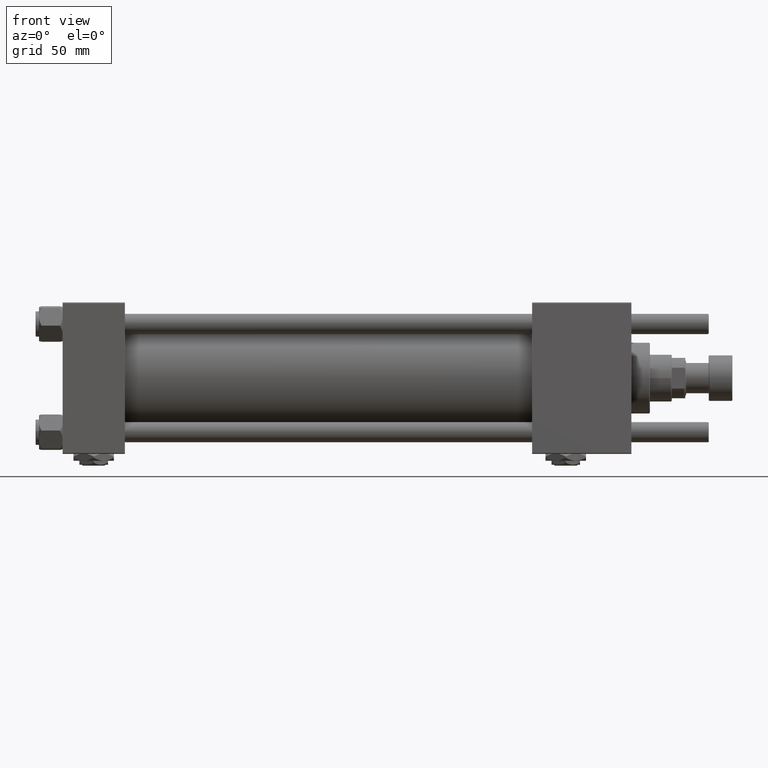
[diagram: clean part render]
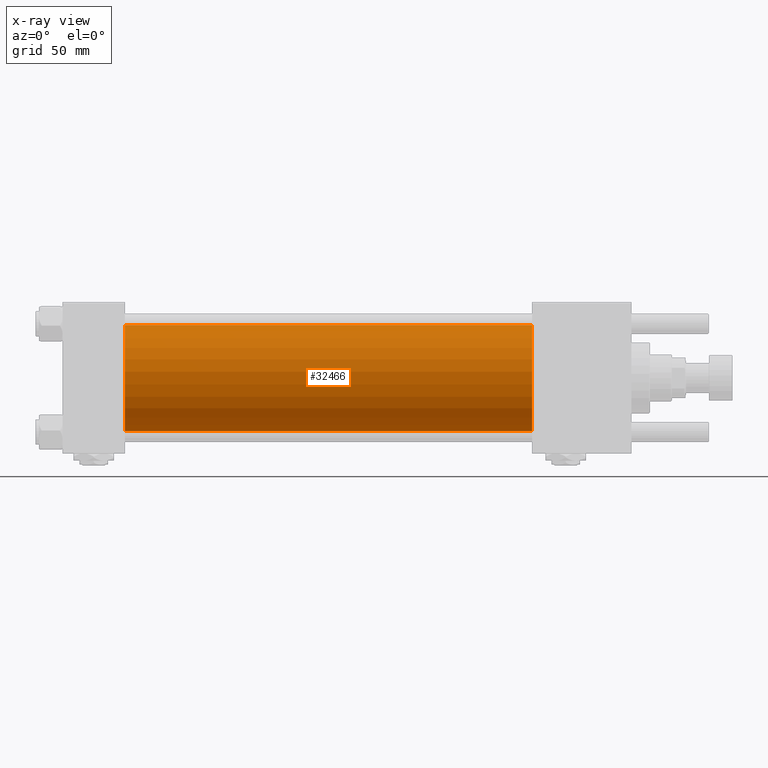
[diagram: x-ray — body ghosted, one internal face saturated and labeled with its STEP entity id]
A machine part, front view, then the same camera in x-ray: the body is ghosted and one INTERNAL B-rep face — a face not visible from any outside direction — is saturated and labeled: STEP entity #32466.
In plain terms, the highlighted cylindrical surface (partial cylindrical patch) has radius 31.5 mm, axis along (-1, -0, -0).
Its self-contained STEP definition (entity closure, byte-faithful):
#948 = VECTOR ( 'NONE', #6233, 1000.000000000000000 ) ;
#1328 = EDGE_CURVE ( 'NONE', #55247, #13382, #3062, .T. ) ;
#2180 = ORIENTED_EDGE ( 'NONE', *, *, #40118, .T. ) ;
#2565 = CARTESIAN_POINT ( 'NONE',  ( 278.9999999999999432, 1.255552203348951850E-15, -31.50000000000000000 ) ) ;
#3062 = CIRCLE ( 'NONE', #35576, 31.50000000000000000 ) ;
#6233 = DIRECTION ( 'NONE',  ( -1.000000000000000000, -0.000000000000000000, -0.000000000000000000 ) ) ;
#7754 = DIRECTION ( 'NONE',  ( 1.000000000000000000, 0.000000000000000000, 0.000000000000000000 ) ) ;
#10708 = VERTEX_POINT ( 'NONE', #2565 ) ;
#11049 = DIRECTION ( 'NONE',  ( 1.000000000000000000, 0.000000000000000000, 0.000000000000000000 ) ) ;
#11092 = DIRECTION ( 'NONE',  ( -1.000000000000000000, -0.000000000000000000, -0.000000000000000000 ) ) ;
#11679 = FACE_OUTER_BOUND ( 'NONE', #33802, .T. ) ;
#13382 = VERTEX_POINT ( 'NONE', #52115 ) ;
#15480 = EDGE_CURVE ( 'NONE', #56082, #55247, #47270, .T. ) ;
#15736 = AXIS2_PLACEMENT_3D ( 'NONE', #47931, #11092, #53020 ) ;
#20322 = LINE ( 'NONE', #38598, #20435 ) ;
#20435 = VECTOR ( 'NONE', #34110, 1000.000000000000000 ) ;
#20662 = CARTESIAN_POINT ( 'NONE',  ( 37.00000000000000000, -2.602085213965210642E-15, 0.000000000000000000 ) ) ;
#21272 = CYLINDRICAL_SURFACE ( 'NONE', #15736, 31.50000000000000000 ) ;
#21318 = CIRCLE ( 'NONE', #25170, 31.50000000000000000 ) ;
#23667 = EDGE_CURVE ( 'NONE', #56082, #10708, #21318, .T. ) ;
#23970 = CARTESIAN_POINT ( 'NONE',  ( 278.9999999999999432, -2.602085213965210642E-15, 0.000000000000000000 ) ) ;
#25170 = AXIS2_PLACEMENT_3D ( 'NONE', #23970, #11049, #33265 ) ;
#29023 = ORIENTED_EDGE ( 'NONE', *, *, #15480, .F. ) ;
#32466 = ADVANCED_FACE ( 'NONE', ( #11679 ), #21272, .F. ) ;
#33265 = DIRECTION ( 'NONE',  ( 0.000000000000000000, 0.000000000000000000, -1.000000000000000000 ) ) ;
#33802 = EDGE_LOOP ( 'NONE', ( #47721, #2180, #47666, #29023 ) ) ;
#34110 = DIRECTION ( 'NONE',  ( -1.000000000000000000, -0.000000000000000000, -0.000000000000000000 ) ) ;
#35576 = AXIS2_PLACEMENT_3D ( 'NONE', #20662, #7754, #52116 ) ;
#38598 = CARTESIAN_POINT ( 'NONE',  ( 278.9999999999999432, 1.255552203348951850E-15, -31.50000000000000000 ) ) ;
#40118 = EDGE_CURVE ( 'NONE', #10708, #13382, #20322, .T. ) ;
#47270 = LINE ( 'NONE', #51762, #948 ) ;
#47666 = ORIENTED_EDGE ( 'NONE', *, *, #1328, .F. ) ;
#47721 = ORIENTED_EDGE ( 'NONE', *, *, #23667, .T. ) ;
#47931 = CARTESIAN_POINT ( 'NONE',  ( 278.9999999999999432, -2.602085213965210642E-15, 0.000000000000000000 ) ) ;
#51762 = CARTESIAN_POINT ( 'NONE',  ( 278.9999999999999432, -2.602085213965210642E-15, 31.50000000000000000 ) ) ;
#52115 = CARTESIAN_POINT ( 'NONE',  ( 37.00000000000000000, 1.255552203348951850E-15, -31.50000000000000000 ) ) ;
#52116 = DIRECTION ( 'NONE',  ( 0.000000000000000000, 0.000000000000000000, -1.000000000000000000 ) ) ;
#52381 = CARTESIAN_POINT ( 'NONE',  ( 278.9999999999999432, -2.602085213965210642E-15, 31.50000000000000000 ) ) ;
#53020 = DIRECTION ( 'NONE',  ( 0.000000000000000000, 0.000000000000000000, 1.000000000000000000 ) ) ;
#55247 = VERTEX_POINT ( 'NONE', #56589 ) ;
#56082 = VERTEX_POINT ( 'NONE', #52381 ) ;
#56589 = CARTESIAN_POINT ( 'NONE',  ( 37.00000000000000000, -2.602085213965210642E-15, 31.50000000000000000 ) ) ;